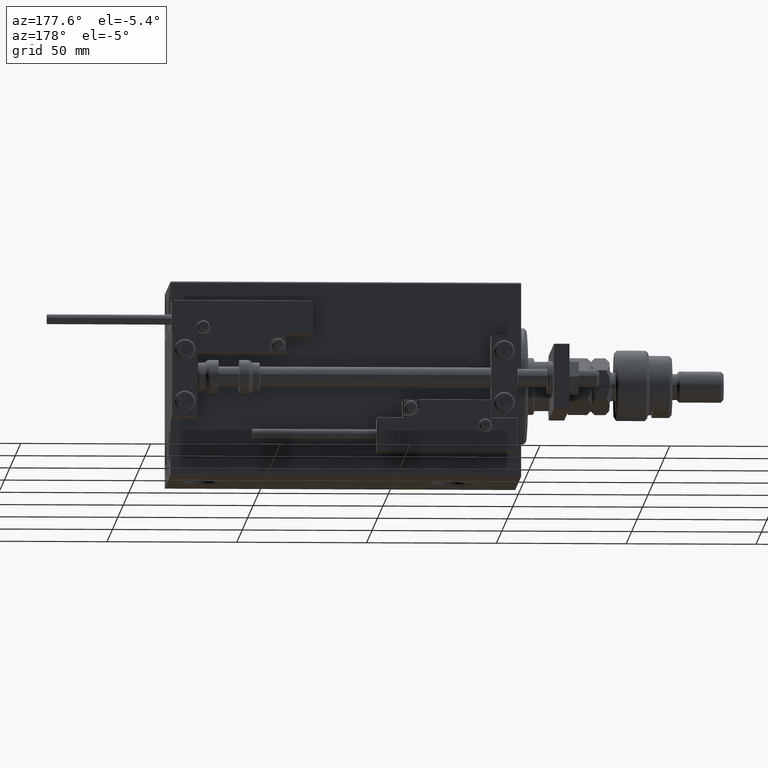
[diagram: clean part render]
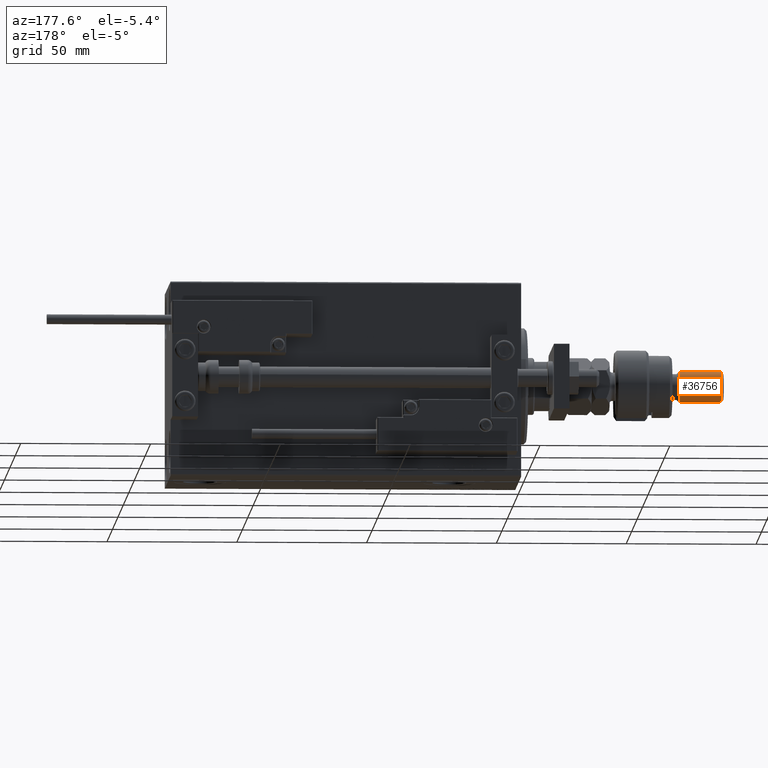
[diagram: same view with one face highlighted and labeled with its STEP entity id]
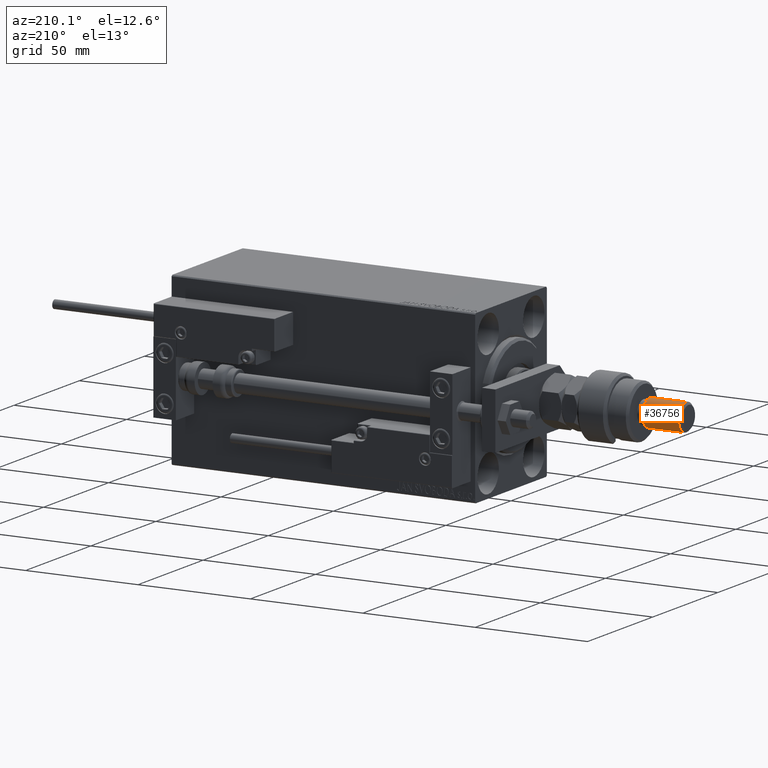
[diagram: same view with one face highlighted and labeled with its STEP entity id]
A machine part, auxiliary view. The second image highlights one B-rep face of the part: STEP entity #36756.
A second angle (auxiliary view) of the same face is appended — the face is thin or edge-on in the first view.
In plain terms, the highlighted cylindrical surface (edge-blend (fillet) strip) has radius 6 mm, axis along (1, -0, -0).
Its self-contained STEP definition (entity closure, byte-faithful):
#1990 = VECTOR ( 'NONE', #23679, 1000.000000000000000 ) ;
#2880 = CYLINDRICAL_SURFACE ( 'NONE', #40278, 6.000000000000000888 ) ;
#7699 = DIRECTION ( 'NONE',  ( -0.000000000000000000, -0.000000000000000000, -1.000000000000000000 ) ) ;
#7975 = CARTESIAN_POINT ( 'NONE',  ( 6.000000000000000888, 7.347880794884120722E-16, 24.99999999999999645 ) ) ;
#8518 = CARTESIAN_POINT ( 'NONE',  ( 6.000000000000000888, 7.347880794884120722E-16, 40.99999999999997868 ) ) ;
#11593 = CARTESIAN_POINT ( 'NONE',  ( -6.000000000000000888, 0.000000000000000000, 41.99999999999999289 ) ) ;
#11661 = EDGE_CURVE ( 'NONE', #49675, #24480, #14732, .T. ) ;
#12028 = DIRECTION ( 'NONE',  ( -0.000000000000000000, -0.000000000000000000, 1.000000000000000000 ) ) ;
#14243 = CARTESIAN_POINT ( 'NONE',  ( -6.000000000000000888, 0.000000000000000000, 40.99999999999997868 ) ) ;
#14732 = CIRCLE ( 'NONE', #39578, 6.000000000000000888 ) ;
#15497 = CARTESIAN_POINT ( 'NONE',  ( 0.000000000000000000, 0.000000000000000000, 41.99999999999999289 ) ) ;
#19132 = CIRCLE ( 'NONE', #49163, 6.000000000000000888 ) ;
#21108 = ORIENTED_EDGE ( 'NONE', *, *, #11661, .T. ) ;
#23275 = CARTESIAN_POINT ( 'NONE',  ( -6.000000000000000888, 0.000000000000000000, 24.99999999999999645 ) ) ;
#23679 = DIRECTION ( 'NONE',  ( -0.000000000000000000, -0.000000000000000000, -1.000000000000000000 ) ) ;
#24208 = LINE ( 'NONE', #11593, #1990 ) ;
#24480 = VERTEX_POINT ( 'NONE', #23275 ) ;
#27452 = ORIENTED_EDGE ( 'NONE', *, *, #49087, .F. ) ;
#28458 = DIRECTION ( 'NONE',  ( -0.000000000000000000, -0.000000000000000000, -1.000000000000000000 ) ) ;
#29223 = DIRECTION ( 'NONE',  ( 1.000000000000000000, 0.000000000000000000, 0.000000000000000000 ) ) ;
#29489 = CARTESIAN_POINT ( 'NONE',  ( 0.000000000000000000, 0.000000000000000000, 40.99999999999997868 ) ) ;
#31388 = VERTEX_POINT ( 'NONE', #8518 ) ;
#32408 = DIRECTION ( 'NONE',  ( -1.000000000000000000, 0.000000000000000000, 0.000000000000000000 ) ) ;
#32680 = ORIENTED_EDGE ( 'NONE', *, *, #48551, .T. ) ;
#32984 = CARTESIAN_POINT ( 'NONE',  ( 0.000000000000000000, 0.000000000000000000, 24.99999999999999645 ) ) ;
#36349 = VERTEX_POINT ( 'NONE', #14243 ) ;
#36492 = DIRECTION ( 'NONE',  ( 1.000000000000000000, 0.000000000000000000, 0.000000000000000000 ) ) ;
#36756 = ADVANCED_FACE ( 'NONE', ( #47751 ), #2880, .T. ) ;
#37026 = DIRECTION ( 'NONE',  ( 0.000000000000000000, 0.000000000000000000, -1.000000000000000000 ) ) ;
#39578 = AXIS2_PLACEMENT_3D ( 'NONE', #32984, #12028, #36492 ) ;
#39731 = VECTOR ( 'NONE', #28458, 1000.000000000000000 ) ;
#40278 = AXIS2_PLACEMENT_3D ( 'NONE', #15497, #7699, #32408 ) ;
#43825 = EDGE_LOOP ( 'NONE', ( #32680, #44954, #21108, #27452 ) ) ;
#44954 = ORIENTED_EDGE ( 'NONE', *, *, #45344, .T. ) ;
#45344 = EDGE_CURVE ( 'NONE', #31388, #49675, #48631, .T. ) ;
#45658 = CARTESIAN_POINT ( 'NONE',  ( 6.000000000000000888, 7.347880794884120722E-16, 41.99999999999999289 ) ) ;
#47751 = FACE_OUTER_BOUND ( 'NONE', #43825, .T. ) ;
#48551 = EDGE_CURVE ( 'NONE', #36349, #31388, #19132, .T. ) ;
#48631 = LINE ( 'NONE', #45658, #39731 ) ;
#49087 = EDGE_CURVE ( 'NONE', #36349, #24480, #24208, .T. ) ;
#49163 = AXIS2_PLACEMENT_3D ( 'NONE', #29489, #37026, #29223 ) ;
#49675 = VERTEX_POINT ( 'NONE', #7975 ) ;